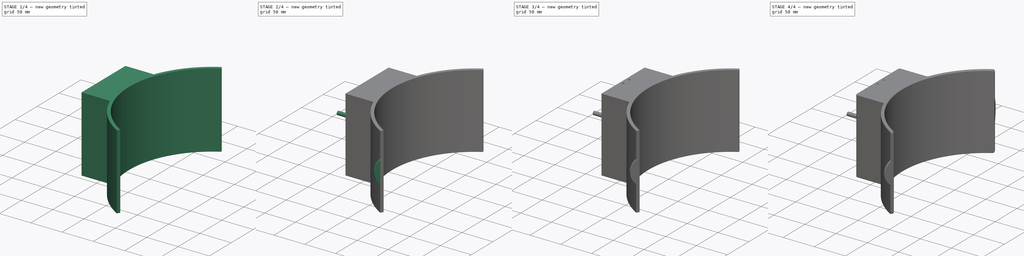
[diagram: build sequence overview — one tinted view per stage of 4, left to right]
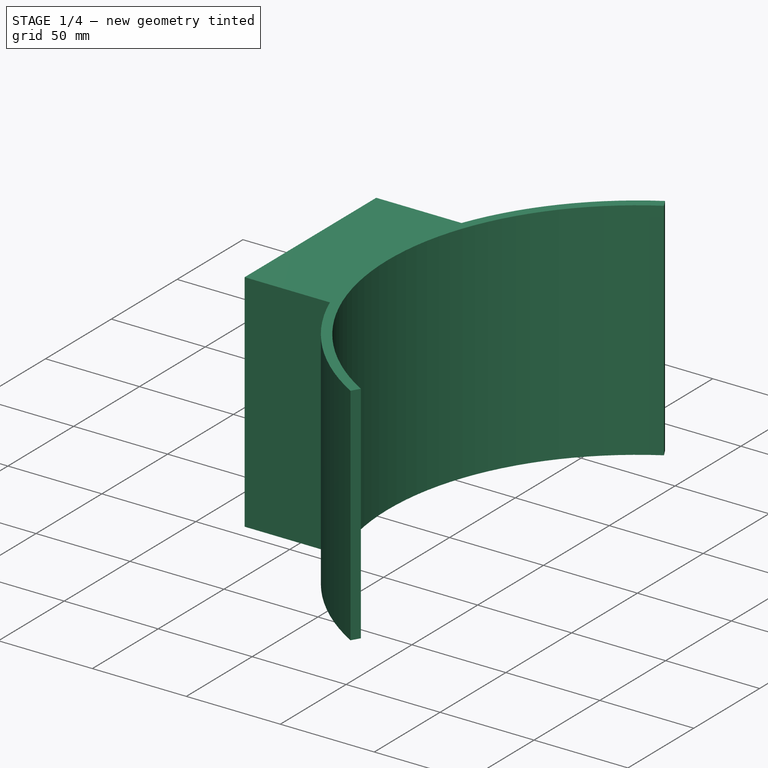
[diagram: stage 1 of 4 — iso view after this stage's code; geometry added in this stage tinted green]
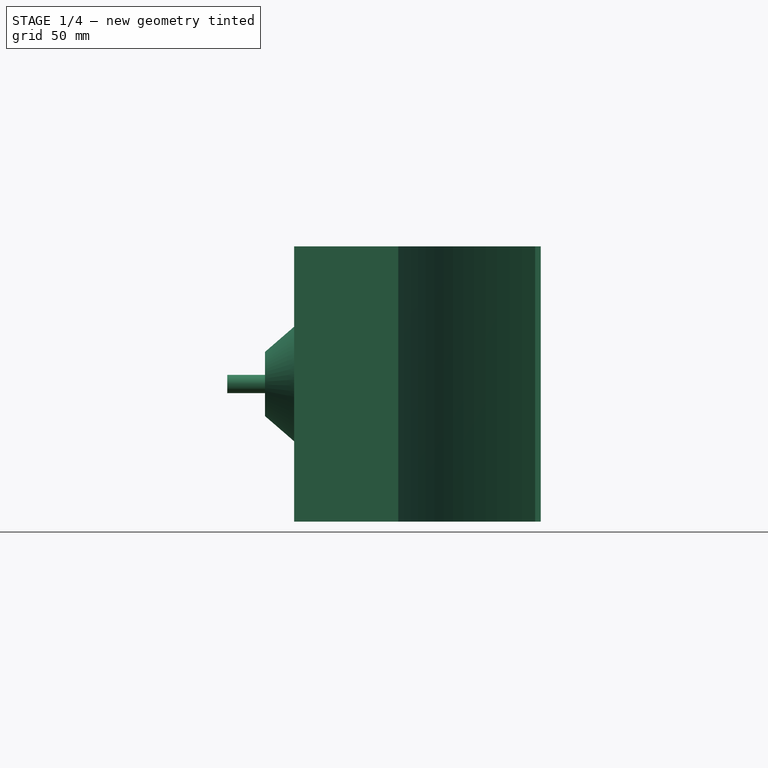
[diagram: stage 1 of 4 — front view after this stage's code; geometry added in this stage tinted green]
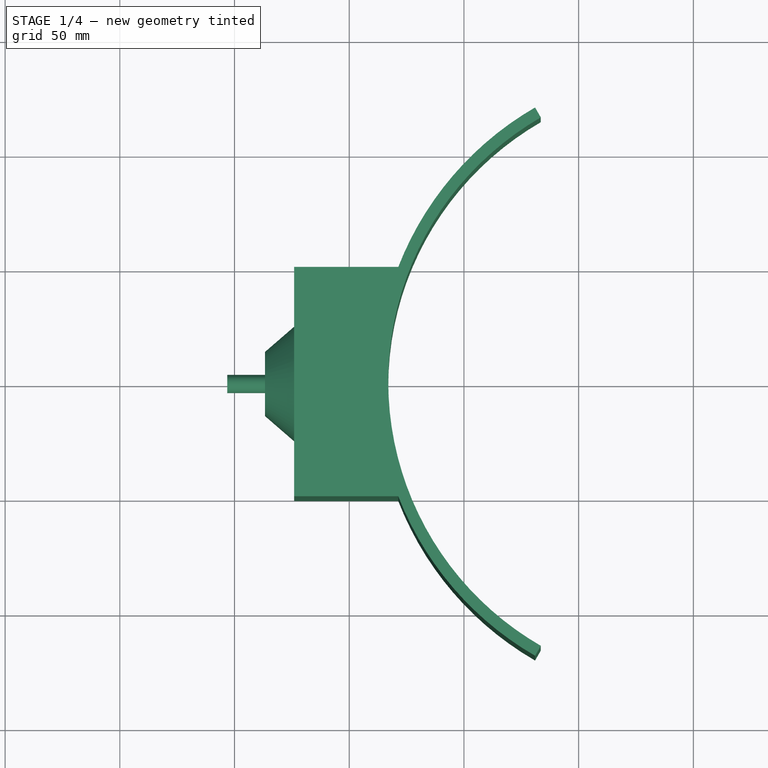
[diagram: stage 1 of 4 — top view after this stage's code; geometry added in this stage tinted green]
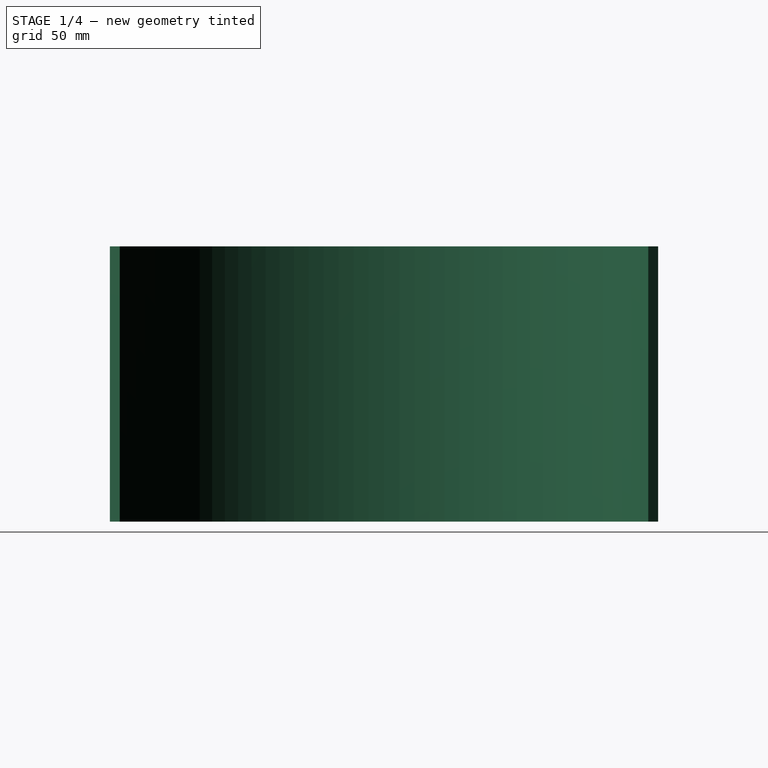
[diagram: stage 1 of 4 — right view after this stage's code; geometry added in this stage tinted green]
FCSTD DOCUMENT  (FreeCAD 1.0R39319 (Git))
Label: Axe
License: All rights reserved
LicenseURL: https://en.wikipedia.org/wiki/All_rights_reserved
objects: Sketcher::SketchObject×8, PartDesign::Pad×4, PartDesign::Pocket×3, PartDesign::Fillet×2, PartDesign::Revolution×1, PartDesign::Plane×1, PartDesign::Mirrored×1, PartDesign::Body×1
note: 50 computed .brp shape members not serialized (recipe doc carries the construction recipe); baked Part::Feature solids carry a one-line shape summary decoded from their .brp

FEATURE [Sketcher::SketchObject] Sketch
  ArcFitTolerance = 1e-06
  AttachmentSupport = -> [XY_Plane]
  FullyConstrained = false
  MakeInternals = false
  MapMode = 5
  sketch-geometry (17):
    g0: Circle [constr] CenterX=0 CenterY=0 CenterZ=0 NormalX=0 NormalY=0 NormalZ=1 AngleXU=0 Radius=133
    g1: LineSegment [constr] StartX=-115.181 StartY=-66.5 StartZ=0 EndX=115.181 EndY=66.5 EndZ=0
    g2: LineSegment [constr] StartX=-115.181 StartY=66.5 StartZ=0 EndX=115.181 EndY=-66.5 EndZ=0
    g3: LineSegment StartX=-174 StartY=50 StartZ=0 EndX=-174 EndY=-50 EndZ=0
    g4: LineSegment StartX=-174 StartY=-50 StartZ=0 EndX=-128.623 EndY=-50 EndZ=0
    g5: LineSegment StartX=-128.623 StartY=50 StartZ=0 EndX=-174 EndY=50 EndZ=0
    g6: ArcOfCircle CenterX=0 CenterY=0 CenterZ=0 NormalX=0 NormalY=0 NormalZ=1 AngleXU=0 Radius=133 StartAngle=2.0944 EndAngle=4.18879
    g7: LineSegment [constr] StartX=-66.5 StartY=-115.181 StartZ=0 EndX=0 EndY=0 EndZ=0
    g8: LineSegment [constr] StartX=-66.5 StartY=115.181 StartZ=0 EndX=0 EndY=0 EndZ=0
    g9: LineSegment StartX=-66.5 StartY=115.181 StartZ=0 EndX=-69 EndY=119.512 EndZ=0
    g10: LineSegment StartX=-66.5 StartY=-115.181 StartZ=0 EndX=-69 EndY=-119.512 EndZ=0
    g11: ArcOfCircle CenterX=5.7e-15 CenterY=2.3e-15 CenterZ=0 NormalX=0 NormalY=0 NormalZ=1 AngleXU=0 Radius=138 StartAngle=3.51235 EndAngle=4.18879
    g12: ArcOfCircle CenterX=5.7e-15 CenterY=2.3e-15 CenterZ=0 NormalX=0 NormalY=0 NormalZ=1 AngleXU=0 Radius=138 StartAngle=2.0944 EndAngle=2.77084
    g13: LineSegment [constr] StartX=-115.181 StartY=-66.5 StartZ=0 EndX=-119.512 EndY=-69 EndZ=0
    g14: LineSegment [constr] StartX=-115.181 StartY=66.5 StartZ=0 EndX=-119.512 EndY=69 EndZ=0
    g15: GeomPoint X=-119.512 Y=-69 Z=0
    g16: GeomPoint X=-119.512 Y=69 Z=0
  constraints (45):
    c: Coincident(g0,g-1)
    c: Diameter(g0) = 266
    c: PointOnObject(g1,g0)
    c: PointOnObject(g1,g0)
    c: PointOnObject(g0,g1)
    c: PointOnObject(g2,g0)
    c: PointOnObject(g2,g0)
    c: PointOnObject(g0,g2)
    c: Angle(g-2,g1) = 2.0944
    c: Angle(g1,g2) = 2.0944
    c: Coincident(g3,g4)
    c: Coincident(g5,g3)
    c: Vertical(g3)
    c: Horizontal(g4)
    c: Horizontal(g5)
    c: Symmetric(g5,g4,g-1)
    c: DistanceY(g3,g3) = 100
    c: Distance(g-2,g3) = 174
    c: Coincident(g6,g0)
    c: PointOnObject(g6,g0)
    c: Coincident(g7,g6)
    c: Symmetric(g1,g1,g7)
    c: Coincident(g8,g6)
    c: Coincident(g8,g7)
    c: Angle(g8,g-1) = 1.0472
    c: Coincident(g9,g6)
    c: Perpendicular(g6,g9)
    c: Distance(g9,g9) = 5
    c: Coincident(g10,g6)
    c: Perpendicular(g0,g10)
    c: Symmetric(g1,g1,g11)
    c: Coincident(g11,g10)
    c: Coincident(g12,g11)
    c: Coincident(g12,g9)
    c: Coincident(g11,g4)
    c: Distance(g10,g10) = 5
    c: Angle(g-1,g7) = 1.0472
    c: Coincident(g13,g1)
    c: PointOnObject(g13,g11)
    c: Coincident(g14,g2)
    c: PointOnObject(g14,g12)
    c: Parallel(g14,g2)
    c: Parallel(g1,g13)
    c: Coincident(g15,g13)
    c: Coincident(g16,g14)
FEATURE [PartDesign::Pad] Pad
  Direction = (0,0,1)
  Length = 120
  Length2 = 10
  Midplane = true
  Profile = -> Sketch
  ReferenceAxis = -> Sketch [N_Axis]
  Refine = true
  Suppressed = false
  Type = 0
FEATURE [Sketcher::SketchObject] Sketch001
  ArcFitTolerance = 1e-06
  AttachmentSupport = -> [XZ_Plane]
  ExternalGeometry = -> [Pad]
  FullyConstrained = true
  MakeInternals = false
  MapMode = 5
  Placement = pos=(0,0,0) rot=(1,0,0;1.5708rad)
  sketch-geometry (4):
    g0: LineSegment StartX=-174 StartY=0 StartZ=0 EndX=-186.7 EndY=0 EndZ=0
    g1: LineSegment StartX=-186.7 StartY=0 StartZ=0 EndX=-186.7 EndY=14 EndZ=0
    g2: LineSegment StartX=-186.7 StartY=14 StartZ=0 EndX=-174 EndY=25 EndZ=0
    g3: LineSegment StartX=-174 StartY=25 StartZ=0 EndX=-174 EndY=0 EndZ=0
  constraints (12):
    c: Horizontal(g0)
    c: Coincident(g1,g0)
    c: Vertical(g1)
    c: Coincident(g2,g1)
    c: Coincident(g3,g2)
    c: Coincident(g3,g0)
    c: Perpendicular(g0,g3)
    c: PointOnObject(g0,g-3)
    c: DistanceY(g1,g1) = 14
    c: PointOnObject(g0,g-1)
    c: DistanceY(g3,g3) = 25
    c: DistanceX(g0,g0) = 12.7
FEATURE [PartDesign::Revolution] Revolution
  Angle = 360
  Angle2 = 60
  Axis = (1,0,0)
  Base = (0,0,0)
  BaseFeature = -> Pad
  Profile = -> Sketch001
  ReferenceAxis = -> X_Axis
  Refine = true
  Suppressed = false
  Type = 0
FEATURE [Sketcher::SketchObject] Sketch002
  ArcFitTolerance = 1e-06
  AttachmentSupport = -> [Revolution]
  FullyConstrained = true
  MakeInternals = false
  MapMode = 5
  Placement = pos=(-186.7,0,0) rot=(0.57735,-0.57735,-0.57735;2.0944rad)
  sketch-geometry (1):
    g0: Circle CenterX=0 CenterY=0 CenterZ=0 NormalX=0 NormalY=0 NormalZ=1 AngleXU=0 Radius=4
  constraints (2):
    c: Coincident(g0,g-1)
    c: Diameter(g0) = 8
FEATURE [PartDesign::Pad] Pad001
  BaseFeature = -> Revolution
  Direction = (-1,0,0)
  Length = 16.5
  Length2 = 10
  Profile = -> Sketch002
  ReferenceAxis = -> Sketch002 [N_Axis]
  Refine = true
  Suppressed = false
  Type = 0
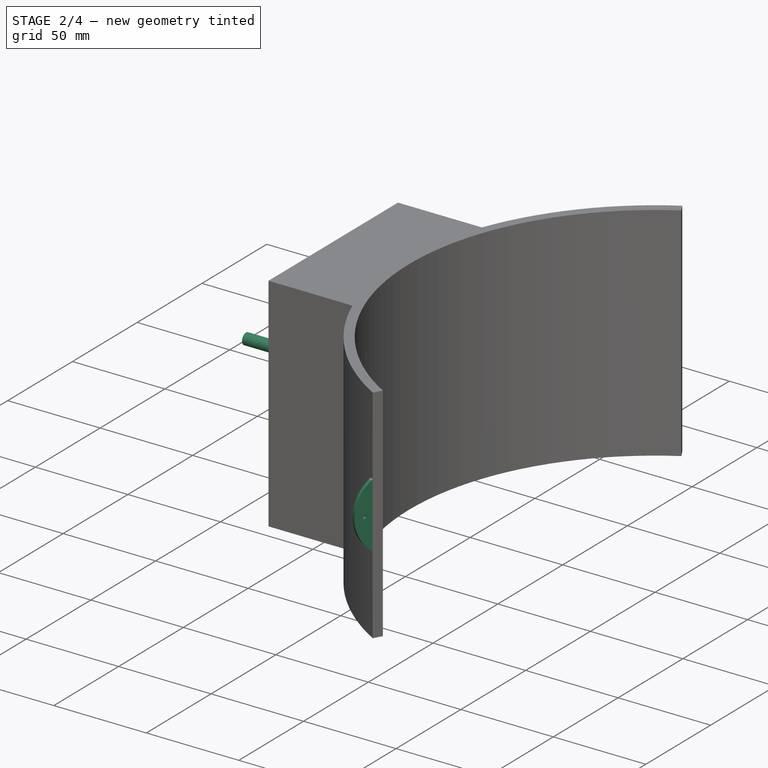
[diagram: stage 2 of 4 — iso view after this stage's code; geometry added in this stage tinted green]
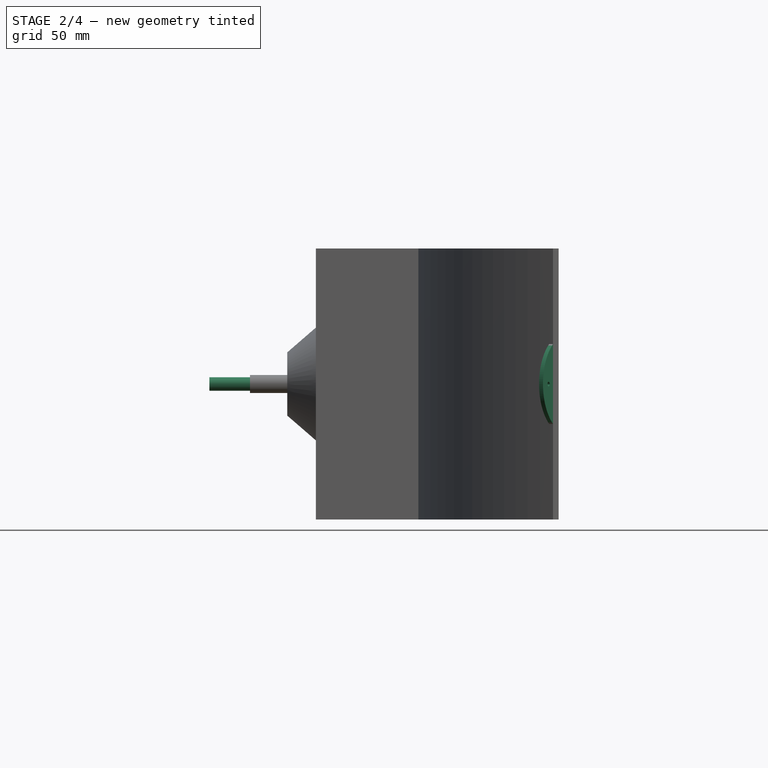
[diagram: stage 2 of 4 — front view after this stage's code; geometry added in this stage tinted green]
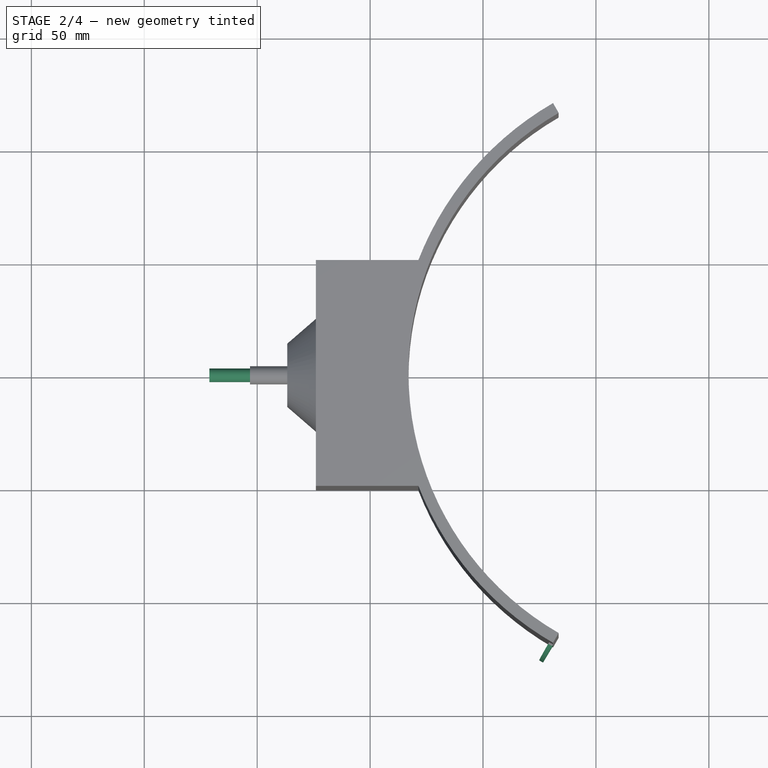
[diagram: stage 2 of 4 — top view after this stage's code; geometry added in this stage tinted green]
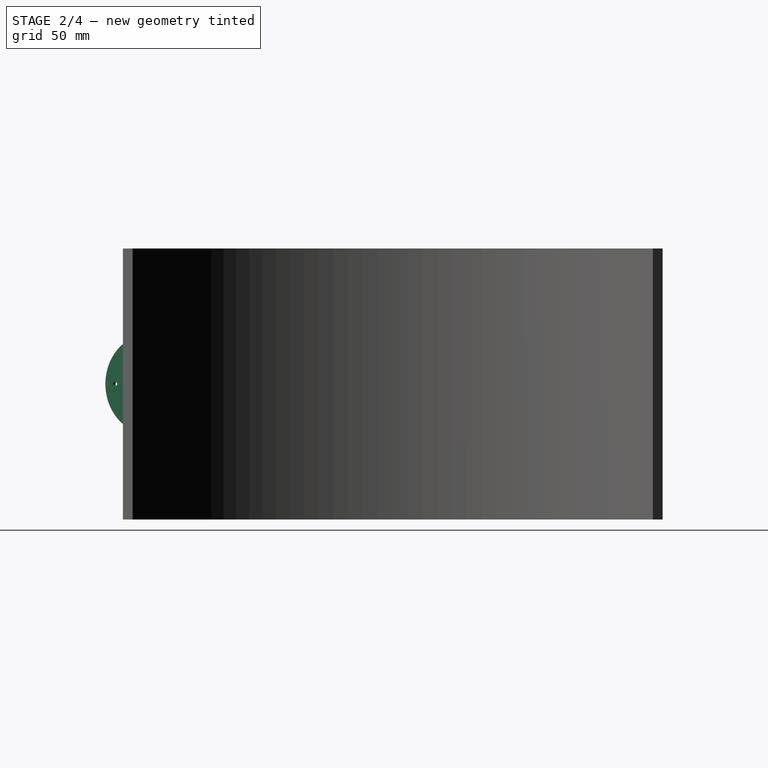
[diagram: stage 2 of 4 — right view after this stage's code; geometry added in this stage tinted green]
FEATURE [Sketcher::SketchObject] Sketch003
  ArcFitTolerance = 1e-06
  AttachmentSupport = -> [Pad001]
  FullyConstrained = true
  MakeInternals = false
  MapMode = 5
  Placement = pos=(-203.2,0,0) rot=(0.57735,-0.57735,-0.57735;2.0944rad)
  sketch-geometry (1):
    g0: Circle CenterX=0 CenterY=0 CenterZ=0 NormalX=0 NormalY=0 NormalZ=1 AngleXU=0 Radius=3
  constraints (2):
    c: Coincident(g0,g-1)
    c: Diameter(g0) = 6
FEATURE [PartDesign::Pad] Pad002
  BaseFeature = -> Pad001
  Direction = (-1,0,0)
  Length = 18
  Length2 = 10
  Profile = -> Sketch003
  ReferenceAxis = -> Sketch003 [N_Axis]
  Refine = true
  Suppressed = false
  Type = 0
FEATURE [Sketcher::SketchObject] Sketch004
  ArcFitTolerance = 1e-06
  AttachmentSupport = -> [Pad002]
  ExternalGeometry = -> [Pad002]
  FullyConstrained = true
  MakeInternals = false
  MapMode = 5
  Placement = pos=(6.15e-14,-3.55e-14,0) rot=(0.774597,0.447214,0.447214;1.82348rad)
  sketch-geometry (2):
    g0: LineSegment StartX=-136 StartY=-19 StartZ=0 EndX=-136 EndY=19 EndZ=0
    g1: ArcOfCircle CenterX=-124.909 CenterY=0 CenterZ=0 NormalX=0 NormalY=0 NormalZ=1 AngleXU=0 Radius=22 StartAngle=2.09915 EndAngle=4.18403
  constraints (7):
    c: Vertical(g0)
    c: DistanceY(g0,g0) = 38
    c: Coincident(g1,g0)
    c: Coincident(g1,g0)
    c: Radius(g1) = 22
    c: PointOnObject(g1,g-1)
    c: Distance(g0,g-3) = 2
FEATURE [PartDesign::Pad] Pad003
  BaseFeature = -> Pad002
  Direction = (0.866025,-0.5,0)
  Length = 2
  Length2 = 10
  Profile = -> Sketch004
  ReferenceAxis = -> Sketch004 [N_Axis]
  Refine = true
  Reversed = true
  Suppressed = false
  Type = 0
FEATURE [Sketcher::SketchObject] Sketch005
  ArcFitTolerance = 1e-06
  AttachmentSupport = -> [Pad003]
  ExternalGeometry = -> [Pad003]
  FullyConstrained = true
  MakeInternals = false
  MapMode = 5
  Placement = pos=(1.292e-13,-7.46e-14,0) rot=(0.774597,0.447214,0.447214;1.82348rad)
  sketch-geometry (1):
    g0: Circle CenterX=-141.909 CenterY=0 CenterZ=0 NormalX=0 NormalY=0 NormalZ=1 AngleXU=0 Radius=1
  constraints (3):
    c: PointOnObject(g0,g-1)
    c: DistanceX(g0,g-3) = 17
    c: Diameter(g0) = 2
FEATURE [PartDesign::Pocket] Pocket
  BaseFeature = -> Pad003
  Direction = (-0.866025,0.5,2e-16)
  Length = 5
  Length2 = 5
  Profile = -> Sketch005
  ReferenceAxis = -> Sketch005 [N_Axis]
  Refine = true
  Suppressed = false
  Type = 1
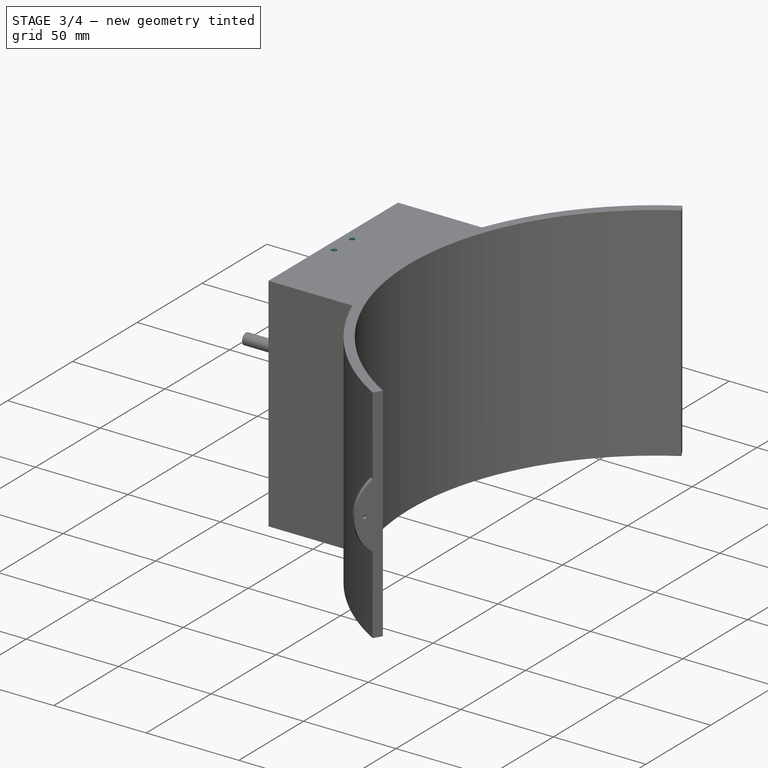
[diagram: stage 3 of 4 — iso view after this stage's code; geometry added in this stage tinted green]
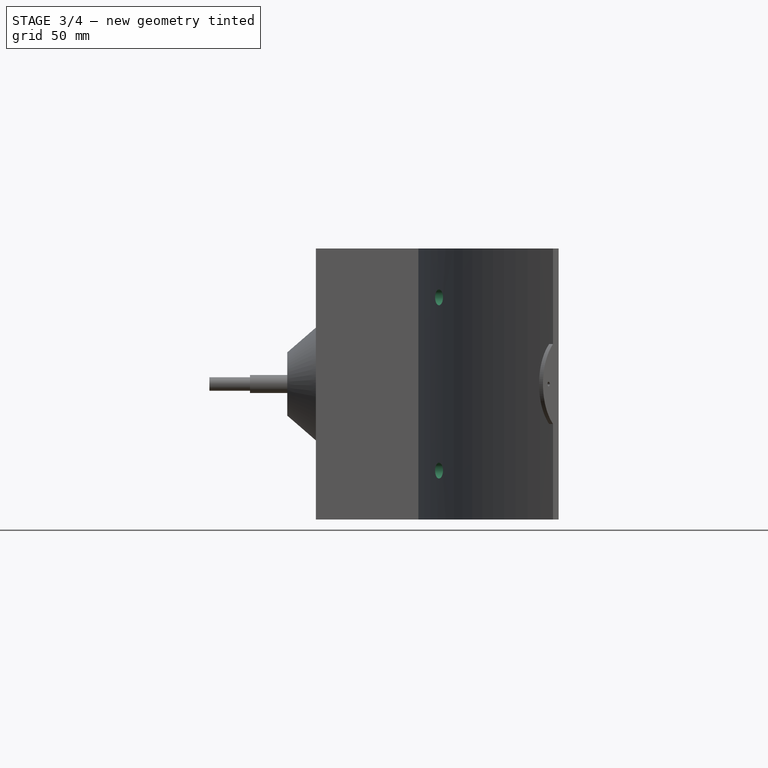
[diagram: stage 3 of 4 — front view after this stage's code; geometry added in this stage tinted green]
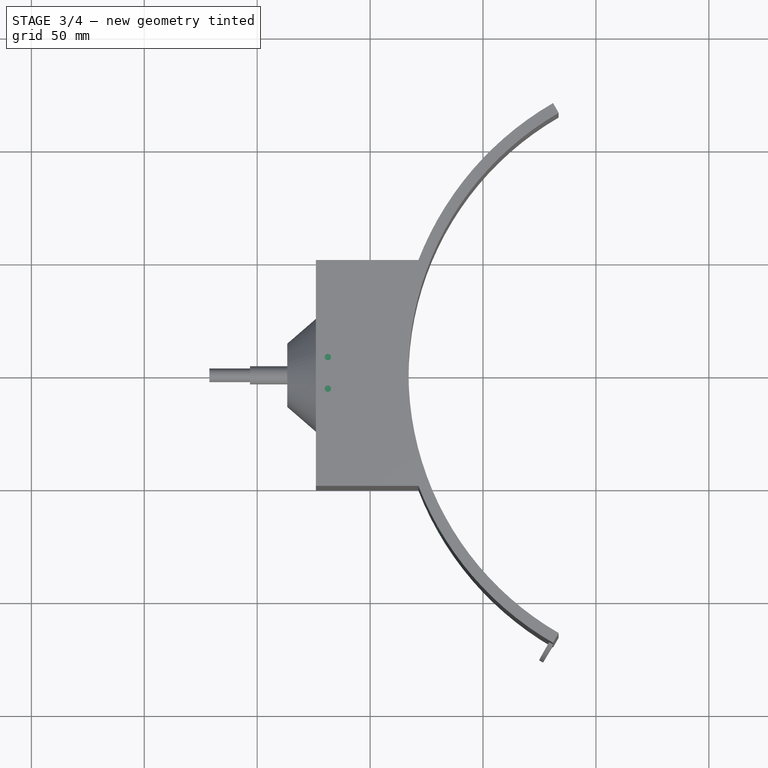
[diagram: stage 3 of 4 — top view after this stage's code; geometry added in this stage tinted green]
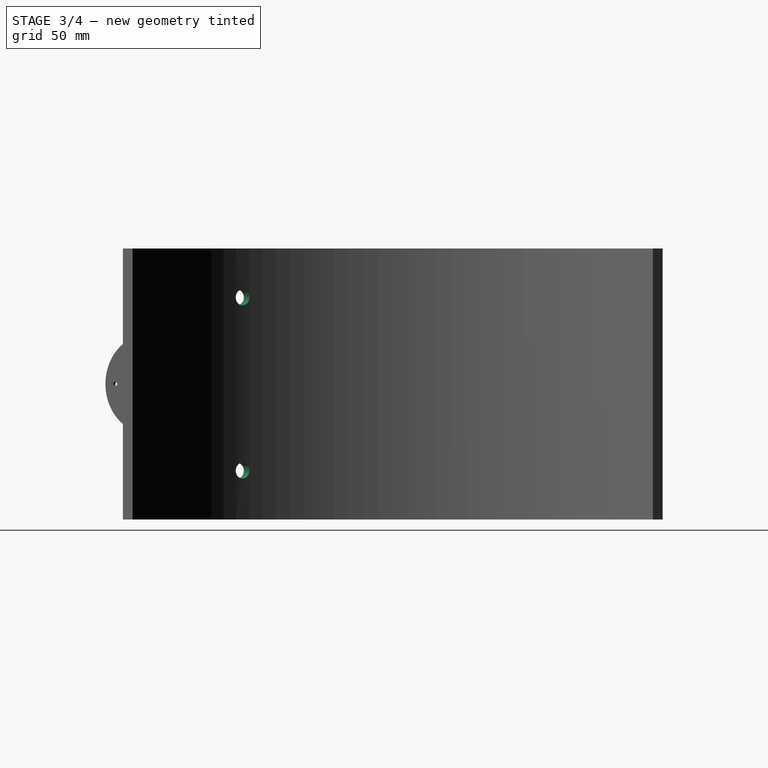
[diagram: stage 3 of 4 — right view after this stage's code; geometry added in this stage tinted green]
FEATURE [PartDesign::Plane] DatumPlane001
  AttachmentSupport = -> [Sketch,Pocket]
  Length = 384.067
  MapMode = 6
  Placement = pos=(-119.512,-69,0) rot=(0.774597,-0.447214,-0.447214;1.82348rad)
  ResizeMode = 0
  Width = 160.603
FEATURE [Sketcher::SketchObject] Sketch006
  ArcFitTolerance = 1e-06
  AttachmentSupport = -> [DatumPlane001]
  FullyConstrained = true
  MakeInternals = false
  MapMode = 5
  Placement = pos=(-119.512,-69,0) rot=(0.774597,-0.447214,-0.447214;1.82348rad)
  sketch-geometry (2):
    g0: Circle CenterX=0 CenterY=38.35 CenterZ=0 NormalX=0 NormalY=0 NormalZ=1 AngleXU=0 Radius=3.5
    g1: Circle CenterX=0 CenterY=-38.35 CenterZ=0 NormalX=0 NormalY=0 NormalZ=1 AngleXU=0 Radius=3.5
  constraints (5):
    c: PointOnObject(g0,g-2)
    c: Symmetric(g0,g1,g-1)
    c: Equal(g0,g1)
    c: Diameter(g0) = 7
    c: Distance(g0,g-1) = 38.35
FEATURE [PartDesign::Pocket] Pocket001
  BaseFeature = -> Pocket
  Direction = (0.866025,0.5,-1e-16)
  Length = 5
  Length2 = 5
  Profile = -> Sketch006
  ReferenceAxis = -> Sketch006 [N_Axis]
  Refine = true
  Suppressed = false
  Type = 1
FEATURE [Sketcher::SketchObject] Sketch007
  ArcFitTolerance = 1e-06
  FullyConstrained = true
  MakeInternals = false
  MapMode = 5
  Placement = pos=(0,0,60) rot=(0,0,1;0rad)
  sketch-geometry (2):
    g0: Circle CenterX=-168.7 CenterY=7 CenterZ=0 NormalX=0 NormalY=0 NormalZ=1 AngleXU=0 Radius=1.4
    g1: Circle CenterX=-168.7 CenterY=-7 CenterZ=0 NormalX=0 NormalY=0 NormalZ=1 AngleXU=0 Radius=1.4
  constraints (5):
    c: Symmetric(g0,g1,g-1)
    c: Equal(g0,g1)
    c: Diameter(g0) = 2.8
    c: Distance(g0,g-1) = 7
    c: Distance(g0,g-3) = 5.3
FEATURE [PartDesign::Pocket] Pocket002
  BaseFeature = -> Pocket001
  Direction = (0,0,-1)
  Length = 3
  Length2 = 5
  Profile = -> Sketch007
  ReferenceAxis = -> Sketch007 [N_Axis]
  Refine = true
  Suppressed = false
  Type = 0
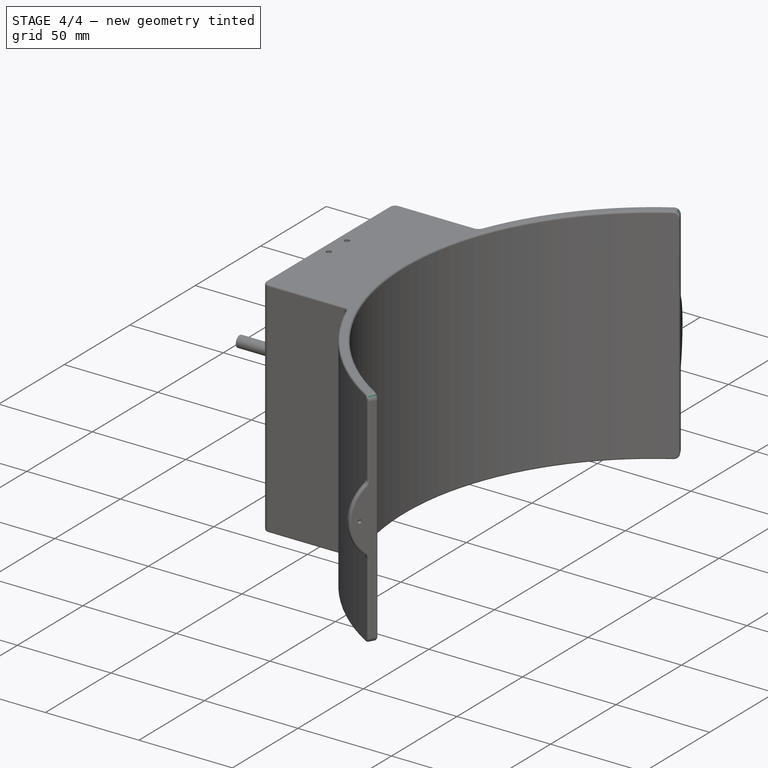
[diagram: stage 4 of 4 — iso view after this stage's code; geometry added in this stage tinted green]
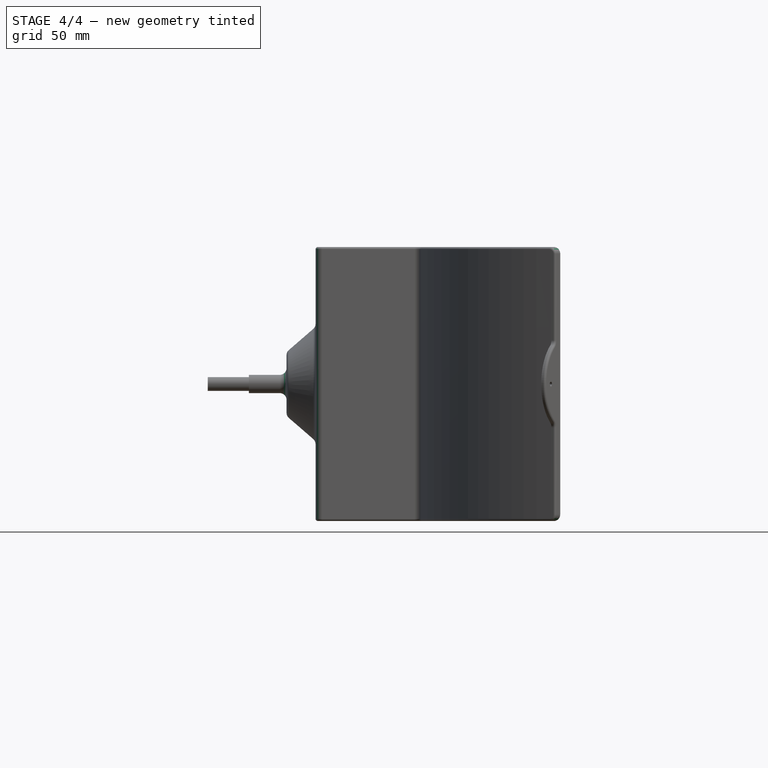
[diagram: stage 4 of 4 — front view after this stage's code; geometry added in this stage tinted green]
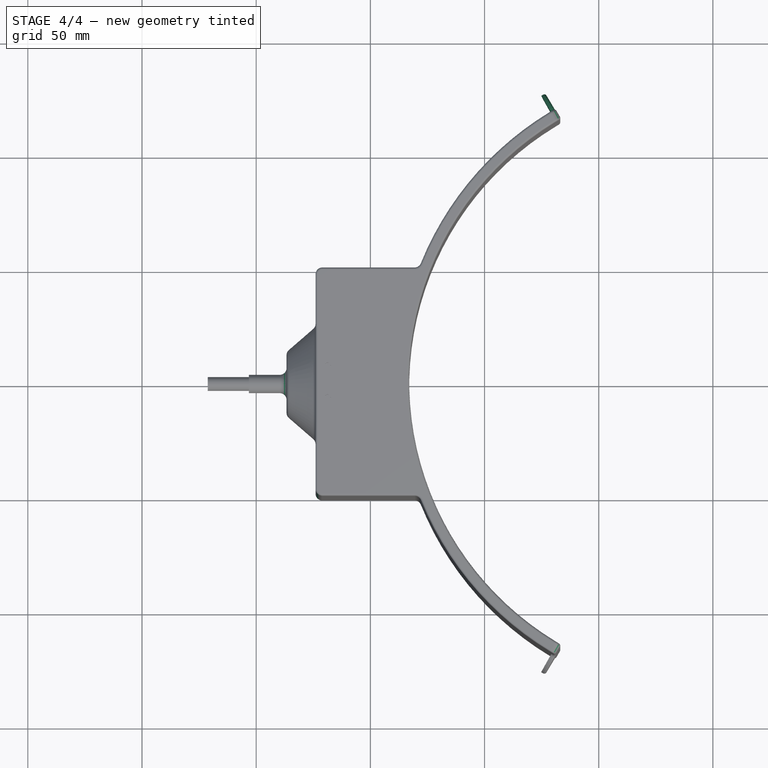
[diagram: stage 4 of 4 — top view after this stage's code; geometry added in this stage tinted green]
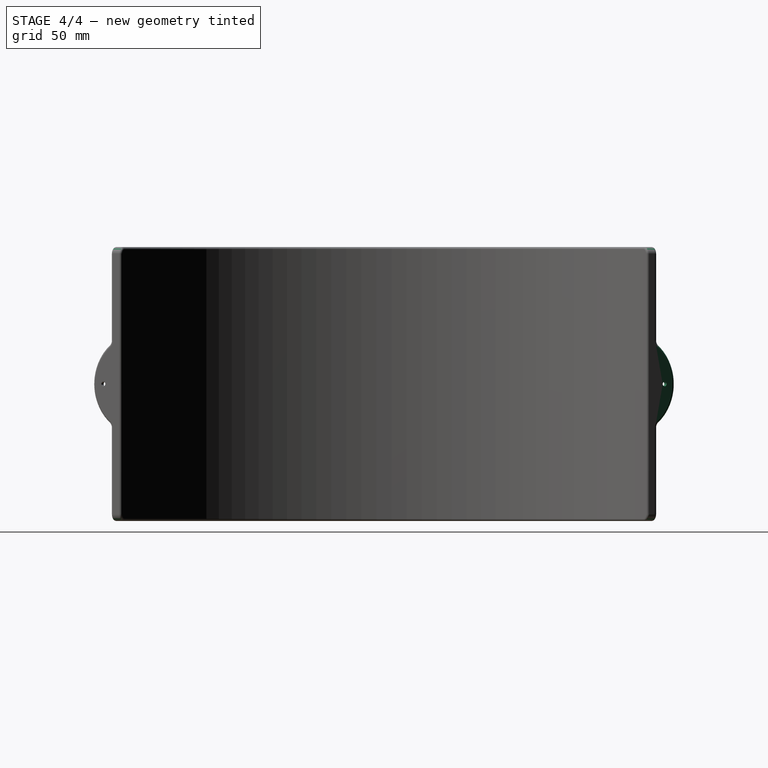
[diagram: stage 4 of 4 — right view after this stage's code; geometry added in this stage tinted green]
FEATURE [PartDesign::Mirrored] Mirrored
  BaseFeature = -> Pocket002
  MirrorPlane = -> XZ_Plane
  Refine = true
  Suppressed = false
  TransformMode = 1
FEATURE [PartDesign::Fillet] Fillet
  Base = -> Mirrored [Edge27,Edge10,Edge6,Edge9,Edge39,Edge37,Edge50,Edge48,Edge22,Edge17,Edge19,Edge13,Edge5,Edge1,Edge2]
  BaseFeature = -> Mirrored
  Radius = 3
  Refine = true
  SupportTransform = false
  Suppressed = false
  UseAllEdges = false
FEATURE [PartDesign::Fillet] Fillet001
  Base = -> Fillet [Edge49,Edge36,Edge41]
  BaseFeature = -> Fillet
  Radius = 1
  Refine = true
  SupportTransform = false
  Suppressed = false
  UseAllEdges = false
FEATURE [PartDesign::Body] Body  label="Corps"
  AllowCompound = false
  Group = -> [Sketch,Pad,Sketch001,Revolution,Sketch002,Pad001,Sketch003,Pad002,Sketch004,Pad003,Sketch005,Pocket,DatumPlane001,Sketch006,Pocket001,Sketch007,Pocket002,Mirrored,Fillet,Fillet001]
  Origin = -> Origin
  Tip = -> Fillet001
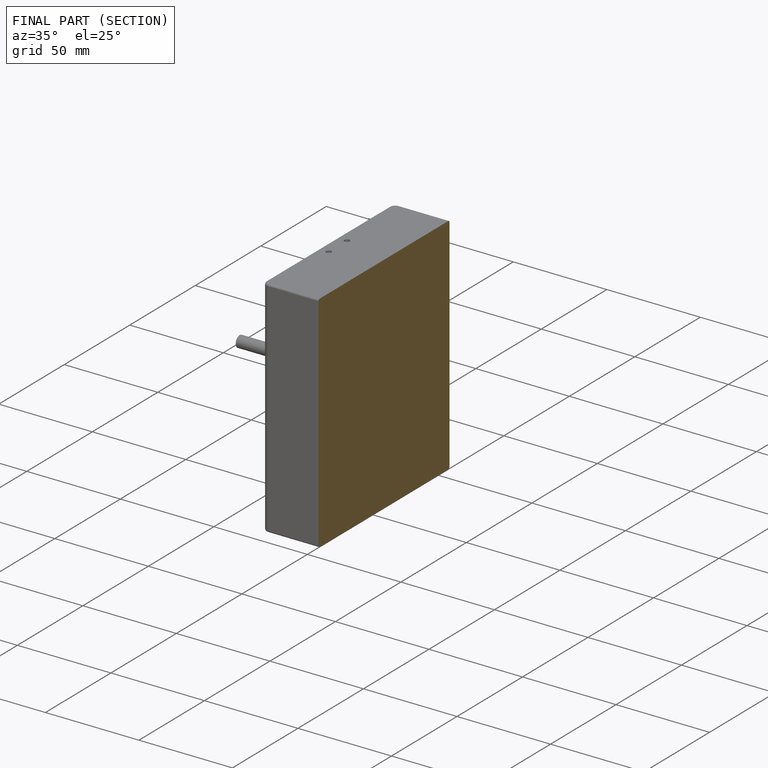
[diagram: finished part — half-section view (interior)]
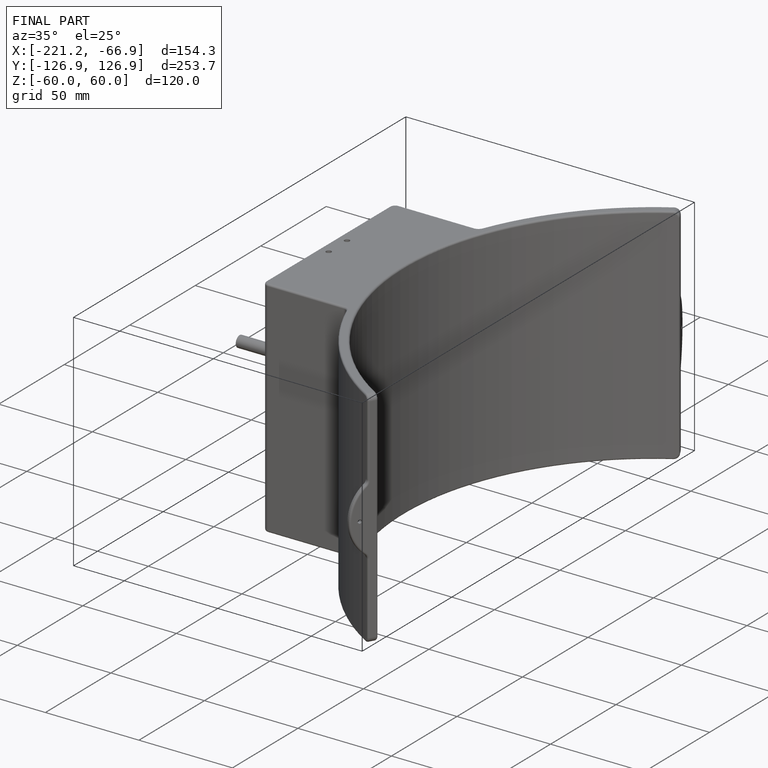
[diagram: finished part — iso view with bounding-box wireframe]
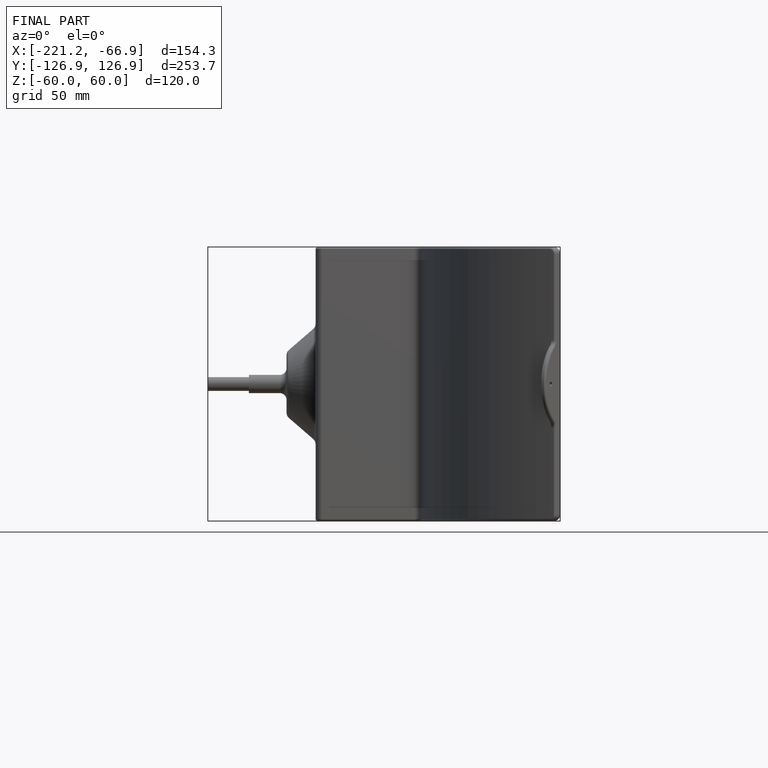
[diagram: finished part — front view with bounding-box wireframe]
